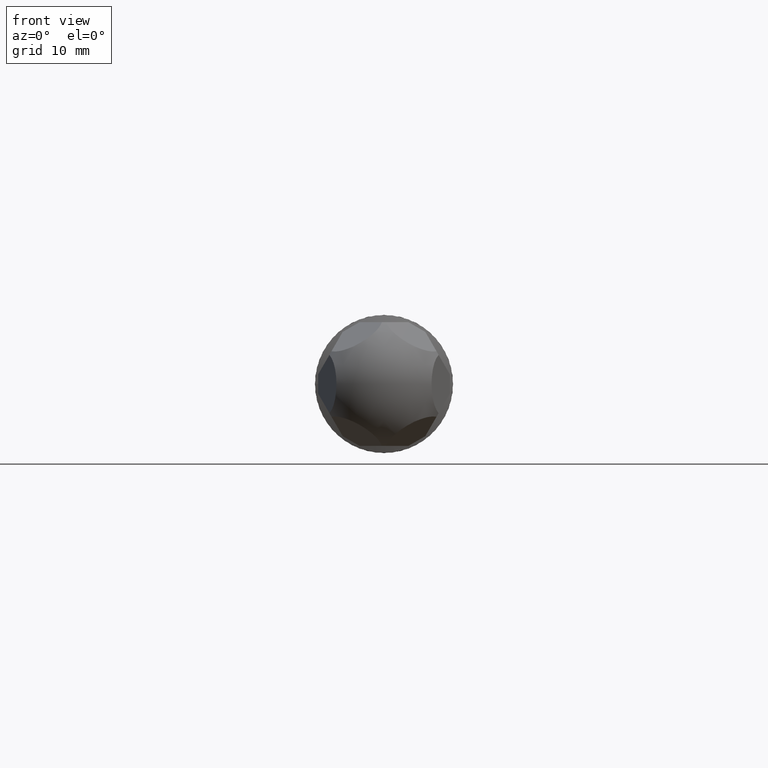
[diagram: clean part render]
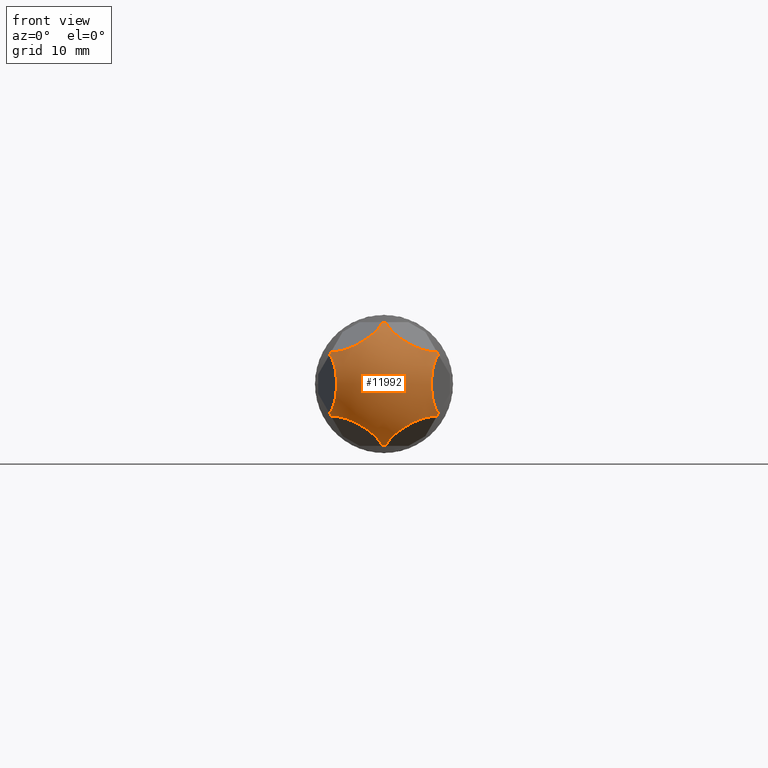
[diagram: same view with one face highlighted and labeled with its STEP entity id]
A machine part, front view. The second image highlights one B-rep face of the part: STEP entity #11992.
In plain terms, the highlighted spherical surface has radius 10 mm.
Its self-contained STEP definition (entity closure, byte-faithful):
#189 = EDGE_CURVE ( 'NONE', #7519, #10053, #5424, .T. ) ;
#451 = CARTESIAN_POINT ( 'NONE',  ( -8.410248956033875345, 43.06108028276474187, 1.306126463814079834E-32 ) ) ;
#609 = VERTEX_POINT ( 'NONE', #9175 ) ;
#644 = VERTEX_POINT ( 'NONE', #11348 ) ;
#685 = CARTESIAN_POINT ( 'NONE',  ( 1.579902875192829217E-13, 40.00000000000000711, -8.950000000000001066 ) ) ;
#744 = CARTESIAN_POINT ( 'NONE',  ( -4.205124478016871947, 43.06108028276474187, -7.283489248076931766 ) ) ;
#752 = EDGE_CURVE ( 'NONE', #9040, #609, #8335, .T. ) ;
#904 = CIRCLE ( 'NONE', #2314, 4.460661385938190726 ) ;
#1127 = AXIS2_PLACEMENT_3D ( 'NONE', #8970, #2100, #10955 ) ;
#1208 = CARTESIAN_POINT ( 'NONE',  ( -4.205124478016975864, 43.06108028276474187, 7.283489248076877587 ) ) ;
#1457 = DIRECTION ( 'NONE',  ( -0.3420201433256694901, -0.9396926207859080948, 0.000000000000000000 ) ) ;
#1684 = DIRECTION ( 'NONE',  ( -1.000000000000000000, 7.777875637210941326E-15, -1.050013211023477063E-14 ) ) ;
#1925 = DIRECTION ( 'NONE',  ( 0.4999999999999946154, 0.000000000000000000, 0.8660254037844417052 ) ) ;
#2032 = ORIENTED_EDGE ( 'NONE', *, *, #6784, .T. ) ;
#2038 = EDGE_CURVE ( 'NONE', #7436, #9778, #3702, .T. ) ;
#2100 = DIRECTION ( 'NONE',  ( -0.8660254037844417052, 1.139925262451985802E-31, 0.4999999999999948930 ) ) ;
#2128 = DIRECTION ( 'NONE',  ( -0.3420201433256694901, 0.9396926207859080948, -3.552713678800500140E-15 ) ) ;
#2174 = DIRECTION ( 'NONE',  ( 0.4698463103929578777, -0.3420201433256697121, -0.8137976813493712491 ) ) ;
#2175 = AXIS2_PLACEMENT_3D ( 'NONE', #6841, #4859, #10736 ) ;
#2314 = AXIS2_PLACEMENT_3D ( 'NONE', #5102, #5958, #4106 ) ;
#2471 = VERTEX_POINT ( 'NONE', #7698 ) ;
#2504 = SPHERICAL_SURFACE ( 'NONE', #5492, 10.00000000000000178 ) ;
#2574 = VERTEX_POINT ( 'NONE', #4703 ) ;
#2805 = DIRECTION ( 'NONE',  ( -0.000000000000000000, 0.000000000000000000, 1.000000000000000000 ) ) ;
#3011 = CIRCLE ( 'NONE', #3408, 4.460661385938196055 ) ;
#3190 = CARTESIAN_POINT ( 'NONE',  ( -7.750927363870659725, 40.00000000000000711, -4.475000000000118661 ) ) ;
#3325 = AXIS2_PLACEMENT_3D ( 'NONE', #3190, #4219, #6113 ) ;
#3408 = AXIS2_PLACEMENT_3D ( 'NONE', #451, #7390, #1457 ) ;
#3538 = CARTESIAN_POINT ( 'NONE',  ( -7.597147870152486604, 44.45004578282596697, -4.741353896282205049 ) ) ;
#3647 = ORIENTED_EDGE ( 'NONE', *, *, #752, .T. ) ;
#3702 = CIRCLE ( 'NONE', #9902, 4.460661385938184509 ) ;
#4106 = DIRECTION ( 'NONE',  ( 0.8660254037844399289, 0.000000000000000000, -0.4999999999999980016 ) ) ;
#4219 = DIRECTION ( 'NONE',  ( -0.8660254037844310471, 1.633413857465630542E-31, -0.5000000000000132117 ) ) ;
#4233 = CARTESIAN_POINT ( 'NONE',  ( 0.3075589874363669485, 44.45004578282593855, 8.950000000000011724 ) ) ;
#4313 = EDGE_CURVE ( 'NONE', #644, #10053, #5977, .T. ) ;
#4412 = AXIS2_PLACEMENT_3D ( 'NONE', #11829, #9946, #1925 ) ;
#4703 = CARTESIAN_POINT ( 'NONE',  ( 7.904706857588922553, 44.45004578282596697, -4.208646103717868847 ) ) ;
#4709 = ORIENTED_EDGE ( 'NONE', *, *, #8911, .F. ) ;
#4746 = DIRECTION ( 'NONE',  ( 1.000000000000000000, 0.000000000000000000, 0.000000000000000000 ) ) ;
#4782 = EDGE_LOOP ( 'NONE', ( #11054, #8174, #4709, #3647, #11580, #6541, #9246, #2032, #12227, #12457, #8750, #12654 ) ) ;
#4859 = DIRECTION ( 'NONE',  ( -0.4698463103929635953, -0.3420201433256697676, 0.8137976813493680295 ) ) ;
#4881 = CIRCLE ( 'NONE', #10367, 4.460661385938184509 ) ;
#4901 = EDGE_CURVE ( 'NONE', #9383, #9778, #11700, .T. ) ;
#5102 = CARTESIAN_POINT ( 'NONE',  ( 4.205124478016921685, 43.06108028276474187, 7.283489248076903344 ) ) ;
#5424 = CIRCLE ( 'NONE', #9054, 4.460661385938195167 ) ;
#5492 = AXIS2_PLACEMENT_3D ( 'NONE', #6366, #2805, #4746 ) ;
#5585 = EDGE_CURVE ( 'NONE', #7106, #9615, #4881, .T. ) ;
#5599 = FACE_OUTER_BOUND ( 'NONE', #4782, .T. ) ;
#5640 = DIRECTION ( 'NONE',  ( 1.765254609153998899E-14, -1.581934594491688021E-45, -1.000000000000000000 ) ) ;
#5958 = DIRECTION ( 'NONE',  ( -0.4698463103929521045, -0.3420201433256697121, -0.8137976813493744688 ) ) ;
#5977 = CIRCLE ( 'NONE', #3325, 4.460661385938191614 ) ;
#6113 = DIRECTION ( 'NONE',  ( 0.5000000000000131006, 0.000000000000000000, -0.8660254037844311581 ) ) ;
#6284 = AXIS2_PLACEMENT_3D ( 'NONE', #685, #5640, #12546 ) ;
#6366 = CARTESIAN_POINT ( 'NONE',  ( 0.000000000000000000, 40.00000000000000711, -6.842277657836020854E-46 ) ) ;
#6541 = ORIENTED_EDGE ( 'NONE', *, *, #189, .T. ) ;
#6604 = DIRECTION ( 'NONE',  ( -0.8660254037844431485, 1.555575127442182033E-15, 0.4999999999999921174 ) ) ;
#6712 = AXIS2_PLACEMENT_3D ( 'NONE', #7053, #11066, #2128 ) ;
#6784 = EDGE_CURVE ( 'NONE', #644, #2471, #3011, .T. ) ;
#6841 = CARTESIAN_POINT ( 'NONE',  ( 4.205124478017022938, 43.06108028276474187, -7.283489248076843836 ) ) ;
#7053 = CARTESIAN_POINT ( 'NONE',  ( 8.410248956033878898, 43.06108028276474187, -4.804302833319537481E-34 ) ) ;
#7106 = VERTEX_POINT ( 'NONE', #9364 ) ;
#7169 = CIRCLE ( 'NONE', #6284, 4.460661385938191614 ) ;
#7390 = DIRECTION ( 'NONE',  ( 0.9396926207859079838, -0.3420201433256697121, -0.000000000000000000 ) ) ;
#7436 = VERTEX_POINT ( 'NONE', #10342 ) ;
#7499 = DIRECTION ( 'NONE',  ( 0.8660254037844345998, -1.633413857465631636E-31, 0.5000000000000072164 ) ) ;
#7500 = EDGE_CURVE ( 'NONE', #7519, #609, #7169, .T. ) ;
#7519 = VERTEX_POINT ( 'NONE', #12362 ) ;
#7631 = DIRECTION ( 'NONE',  ( 0.4698463103929464424, -0.3420201433256697121, 0.8137976813493776884 ) ) ;
#7698 = CARTESIAN_POINT ( 'NONE',  ( -7.904706857588919000, 44.45004578282596697, 4.208646103717868847 ) ) ;
#8174 = ORIENTED_EDGE ( 'NONE', *, *, #12721, .T. ) ;
#8186 = AXIS2_PLACEMENT_3D ( 'NONE', #10470, #10512, #1684 ) ;
#8335 = CIRCLE ( 'NONE', #2175, 4.460661385938193391 ) ;
#8515 = CARTESIAN_POINT ( 'NONE',  ( 7.597147870152522131, 44.45004578282596697, 4.741353896282152647 ) ) ;
#8750 = ORIENTED_EDGE ( 'NONE', *, *, #4901, .F. ) ;
#8911 = EDGE_CURVE ( 'NONE', #9040, #2574, #12744, .T. ) ;
#8970 = CARTESIAN_POINT ( 'NONE',  ( -7.750927363870756537, 40.00000000000000711, 4.474999999999955236 ) ) ;
#9040 = VERTEX_POINT ( 'NONE', #12556 ) ;
#9054 = AXIS2_PLACEMENT_3D ( 'NONE', #744, #7631, #6604 ) ;
#9175 = CARTESIAN_POINT ( 'NONE',  ( 0.3075589874364967891, 44.45004578282596697, -8.949999999999995737 ) ) ;
#9246 = ORIENTED_EDGE ( 'NONE', *, *, #4313, .F. ) ;
#9364 = CARTESIAN_POINT ( 'NONE',  ( 7.904706857588929658, 44.45004578282595276, 4.208646103717868847 ) ) ;
#9383 = VERTEX_POINT ( 'NONE', #4233 ) ;
#9615 = VERTEX_POINT ( 'NONE', #8515 ) ;
#9769 = CIRCLE ( 'NONE', #1127, 4.460661385938187173 ) ;
#9778 = VERTEX_POINT ( 'NONE', #12876 ) ;
#9902 = AXIS2_PLACEMENT_3D ( 'NONE', #1208, #2174, #10989 ) ;
#9946 = DIRECTION ( 'NONE',  ( 0.8660254037844417052, -1.139925262451985802E-31, -0.4999999999999948930 ) ) ;
#10053 = VERTEX_POINT ( 'NONE', #3538 ) ;
#10342 = CARTESIAN_POINT ( 'NONE',  ( -7.597147870152557658, 44.45004578282595276, 4.741353896282108238 ) ) ;
#10367 = AXIS2_PLACEMENT_3D ( 'NONE', #12515, #7499, #12333 ) ;
#10470 = CARTESIAN_POINT ( 'NONE',  ( -9.489353747227375803E-14, 40.00000000000000711, 8.950000000000008171 ) ) ;
#10512 = DIRECTION ( 'NONE',  ( -1.060262988517024338E-14, 7.964411193721126718E-46, 1.000000000000000000 ) ) ;
#10595 = EDGE_CURVE ( 'NONE', #7436, #2471, #9769, .T. ) ;
#10736 = DIRECTION ( 'NONE',  ( -0.8660254037844328234, 0.000000000000000000, -0.5000000000000101030 ) ) ;
#10955 = DIRECTION ( 'NONE',  ( -0.4999999999999949485, -7.777875637210923971E-15, -0.8660254037844415942 ) ) ;
#10989 = DIRECTION ( 'NONE',  ( 0.8660254037844362651, 0.000000000000000000, 0.5000000000000039968 ) ) ;
#11054 = ORIENTED_EDGE ( 'NONE', *, *, #5585, .F. ) ;
#11066 = DIRECTION ( 'NONE',  ( -0.9396926207859079838, -0.3420201433256697121, -0.000000000000000000 ) ) ;
#11348 = CARTESIAN_POINT ( 'NONE',  ( -7.904706857588924329, 44.45004578282595276, -4.208646103717875953 ) ) ;
#11580 = ORIENTED_EDGE ( 'NONE', *, *, #7500, .F. ) ;
#11700 = CIRCLE ( 'NONE', #8186, 4.460661385938177403 ) ;
#11744 = CIRCLE ( 'NONE', #6712, 4.460661385938196055 ) ;
#11829 = CARTESIAN_POINT ( 'NONE',  ( 7.750927363870754760, 40.00000000000000711, -4.474999999999955236 ) ) ;
#11992 = ADVANCED_FACE ( 'NONE', ( #5599 ), #2504, .T. ) ;
#12227 = ORIENTED_EDGE ( 'NONE', *, *, #10595, .F. ) ;
#12333 = DIRECTION ( 'NONE',  ( -0.5000000000000071054, -1.555575127442185741E-14, 0.8660254037844345998 ) ) ;
#12362 = CARTESIAN_POINT ( 'NONE',  ( -0.3075589874363036103, 44.45004578282596697, -8.950000000000009948 ) ) ;
#12446 = EDGE_CURVE ( 'NONE', #9383, #9615, #904, .T. ) ;
#12457 = ORIENTED_EDGE ( 'NONE', *, *, #2038, .T. ) ;
#12515 = CARTESIAN_POINT ( 'NONE',  ( 7.750927363870691700, 40.00000000000000711, 4.475000000000065370 ) ) ;
#12546 = DIRECTION ( 'NONE',  ( 1.000000000000000000, 0.000000000000000000, 1.750022018372456197E-14 ) ) ;
#12556 = CARTESIAN_POINT ( 'NONE',  ( 7.597147870152587856, 44.45004578282596697, -4.741353896282043401 ) ) ;
#12654 = ORIENTED_EDGE ( 'NONE', *, *, #12446, .T. ) ;
#12721 = EDGE_CURVE ( 'NONE', #7106, #2574, #11744, .T. ) ;
#12744 = CIRCLE ( 'NONE', #4412, 4.460661385938186285 ) ;
#12876 = CARTESIAN_POINT ( 'NONE',  ( -0.3075589874364431653, 44.45004578282595276, 8.950000000000002842 ) ) ;